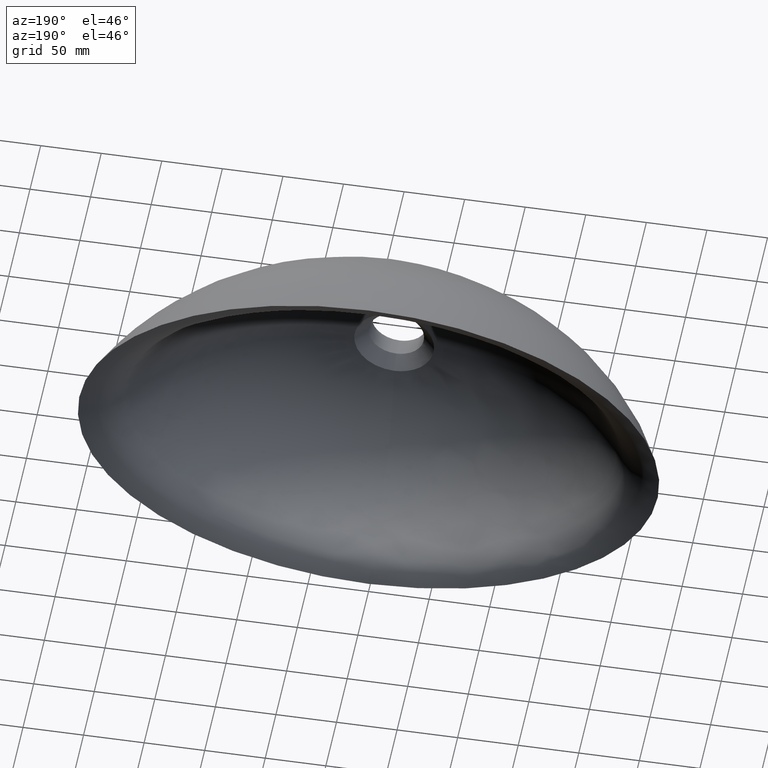
[diagram: clean part render]
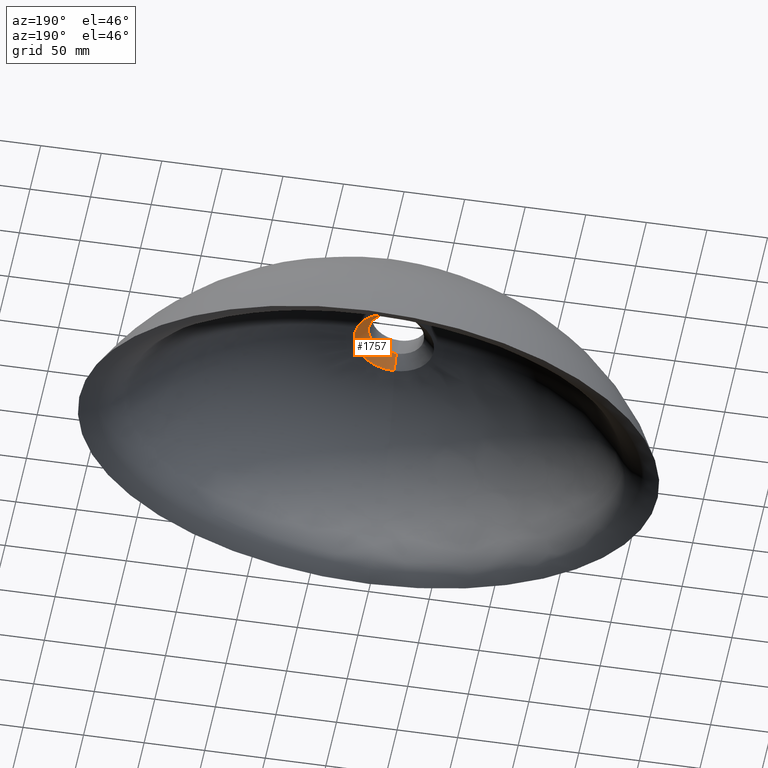
[diagram: same view with one face highlighted and labeled with its STEP entity id]
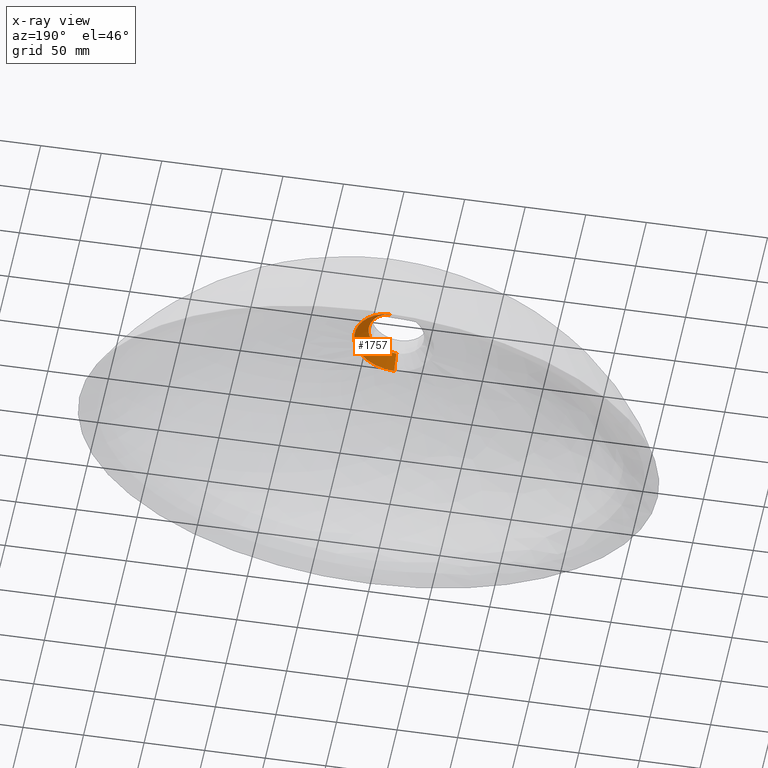
[diagram: x-ray of the same camera — body ghosted, the highlighted face saturated]
A machine part, auxiliary view. The second image highlights one B-rep face of the part: STEP entity #1757.
The next image is the same camera in x-ray: the body ghosted, the highlighted face saturated — about 1% of this face is hidden behind the body in this view.
In plain terms, the highlighted face is a freeform B-spline surface patch.
Its self-contained STEP definition (entity closure, byte-faithful):
#7 = CARTESIAN_POINT ( 'NONE',  ( 16.46208693124019700, -130.0000000000000000, 16.46208693124019700 ) ) ;
#10 = EDGE_CURVE ( 'NONE', #279, #1690, #1782, .T. ) ;
#39 = CARTESIAN_POINT ( 'NONE',  ( 22.97388258544183900, -126.6666666666666700, -13.46694669425560600 ) ) ;
#43 = CARTESIAN_POINT ( 'NONE',  ( 23.61951603177940500, -120.0000000000000600, 23.61951603177941200 ) ) ;
#52 = CARTESIAN_POINT ( 'NONE',  ( 0.8171307700640513300, -126.6666666666666700, 26.32341272285058100 ) ) ;
#53 = CARTESIAN_POINT ( 'NONE',  ( -3.547703429105101100, -123.3333333333333900, 29.52666568535948600 ) ) ;
#56 = CARTESIAN_POINT ( 'NONE',  ( 16.87630028773804700, -120.0000000000000300, 28.79005539188281300 ) ) ;
#74 = CARTESIAN_POINT ( 'NONE',  ( -0.3058699265881809100, -130.0000000000000000, 23.00000000000000700 ) ) ;
#75 = CARTESIAN_POINT ( 'NONE',  ( 3.946321791925883300, -120.0000000000000400, 32.84426857135494500 ) ) ;
#84 = CARTESIAN_POINT ( 'NONE',  ( 15.17162349099683500, -123.3333333333333100, -25.88196898866231200 ) ) ;
#85 = CARTESIAN_POINT ( 'NONE',  ( 7.434842606796172100, -126.6666666666666400, 25.49208752010253000 ) ) ;
#112 = CARTESIAN_POINT ( 'NONE',  ( 9.317081241428114800, -120.0000000000000000, 31.94578056316645800 ) ) ;
#114 = CARTESIAN_POINT ( 'NONE',  ( 23.28882790013081900, -130.0000000000000000, -5.421010862427522200E-015 ) ) ;
#169 = CARTESIAN_POINT ( 'NONE',  ( -23.61951603177939800, -120.0000000000000300, 23.61951603177940500 ) ) ;
#172 = CARTESIAN_POINT ( 'NONE',  ( 20.06579618222135200, -130.0000000000000000, -11.76226989751439300 ) ) ;
#247 = CARTESIAN_POINT ( 'NONE',  ( -23.61951603177939800, -120.0000000000000300, -23.61951603177940800 ) ) ;
#263 = CARTESIAN_POINT ( 'NONE',  ( -4.815006662785645400E-011, -130.0000000000000000, -23.00000000000000000 ) ) ;
#268 = CARTESIAN_POINT ( 'NONE',  ( 28.92157440256107700, -123.3333333333333100, 7.890557526477531200 ) ) ;
#276 = CARTESIAN_POINT ( 'NONE',  ( -5.512720266962036300E-011, -126.6666666666667000, -26.33333333333332900 ) ) ;
#279 = VERTEX_POINT ( 'NONE', #2513 ) ;
#305 = CARTESIAN_POINT ( 'NONE',  ( 1.023999319447356000, -120.0000000000000300, 32.98756784255958500 ) ) ;
#328 = VERTEX_POINT ( 'NONE', #3226 ) ;
#356 = CARTESIAN_POINT ( 'NONE',  ( 1.235990476633475100E-014, -123.3333333333333400, -30.03921279871946100 ) ) ;
#366 = ORIENTED_EDGE ( 'NONE', *, *, #1082, .F. ) ;
#367 = CARTESIAN_POINT ( 'NONE',  ( -11.76226989751439300, -129.9999999999999700, 20.06579618222134400 ) ) ;
#376 = CARTESIAN_POINT ( 'NONE',  ( -25.67195930114970500, -126.6666666666666700, -7.003978029120505200 ) ) ;
#380 = CARTESIAN_POINT ( 'NONE',  ( -22.97388258544183200, -126.6666666666666400, 13.46694669425561800 ) ) ;
#403 = CARTESIAN_POINT ( 'NONE',  ( -5.448115916739659800E-015, -120.0000000000000300, 33.00000000000000000 ) ) ;
#418 = CARTESIAN_POINT ( 'NONE',  ( 16.87630028773804700, -119.9999999999999900, -28.79005539188280900 ) ) ;
#511 = CARTESIAN_POINT ( 'NONE',  ( -5.448115916739659800E-015, -120.0000000000000300, 33.00000000000000000 ) ) ;
#533 = CARTESIAN_POINT ( 'NONE',  ( -8.777137023834550100, -120.0000000000000000, -32.17118950397242800 ) ) ;
#599 = CARTESIAN_POINT ( 'NONE',  ( -21.23370633159966700, -123.3333333333333100, 21.23370633159967000 ) ) ;
#657 = CARTESIAN_POINT ( 'NONE',  ( 0.9205650447557056600, -123.3333333333333600, 29.65549028270508100 ) ) ;
#682 = B_SPLINE_CURVE_WITH_KNOTS ( 'NONE', 3,
 ( #1109, #1140, #1101, #1098 ),
 .UNSPECIFIED., .F., .F.,
 ( 4, 4 ),
 ( 0.0000000000000000000, 1.000000000000000000 ),
 .UNSPECIFIED. ) ;
#699 = B_SPLINE_SURFACE_WITH_KNOTS ( 'NONE', 3, 3, ( 
 ( #1731, #2249, #2236, #2955, #1930, #1770, #169, #929, #1818, #1971, #2885, #794, #247, #2679, #533, #838, #1606, #418, #2121, #764, #1161, #3064, #1838, #1915, #43, #56, #112, #75, #305, #2197, #2194 ),
 ( #2083, #2184, #2162, #53, #1466, #3048, #599, #1784, #902, #920, #2522, #937, #1415, #1756, #3062, #356, #1052, #84, #2086, #905, #962, #2338, #268, #1803, #2957, #2605, #3176, #3070, #657, #2468, #2576 ),
 ( #1986, #3122, #2973, #790, #1113, #1067, #3218, #380, #867, #2706, #376, #1733, #2374, #734, #1117, #2664, #2359, #1555, #2716, #39, #3034, #2203, #2493, #2325, #2533, #2096, #85, #1077, #52, #2784, #2834 ),
 ( #2133, #74, #1987, #820, #1866, #367, #1907, #1561, #1892, #864, #1774, #1769, #1594, #1991, #776, #2570, #2894, #3130, #2291, #172, #1093, #114, #2324, #915, #7, #1169, #1469, #2595, #1667, #2718, #1335 ) ),
 .UNSPECIFIED., .F., .T., .F.,
 ( 4, 4 ),
 ( 4, 1, 1, 1, 1, 1, 1, 1, 1, 1, 1, 1, 1, 1, 1, 1, 1, 1, 1, 1, 1, 1, 1, 1, 1, 1, 1, 1, 4 ),
 ( 0.0000000000000000000, 1.000000000000000000 ),
 ( 0.0000000000000000000, 0.006250000000000088800, 0.008333333333333303700, 0.04166666666666663000, 0.08333333333333337000, 0.1249999999999998900, 0.1666666666666666300, 0.2083333333333333700, 0.2499999999999998300, 0.2916666666666666300, 0.3333333333333333700, 0.3750000000000001100, 0.4166666666666666300, 0.4583333333333333700, 0.5000000000009839900, 0.5416666666666667400, 0.5833333333333332600, 0.6250000000000000000, 0.6666666666666667400, 0.7083333333333332600, 0.7499999999999998900, 0.7916666666666666300, 0.8333333333333333700, 0.8750000000000000000, 0.9166666666666666300, 0.9583333333333333700, 0.9916666666666667000, 0.9937500000000000200, 1.000000000000000000 ),
 .UNSPECIFIED. ) ;
#734 = CARTESIAN_POINT ( 'NONE',  ( -13.46694669425560200, -126.6666666666666700, -22.97388258544182400 ) ) ;
#764 = CARTESIAN_POINT ( 'NONE',  ( 28.79005539188281700, -120.0000000000000300, -16.87630028773804700 ) ) ;
#776 = CARTESIAN_POINT ( 'NONE',  ( -6.117398531763475600, -130.0000000000000000, -22.42234419973835500 ) ) ;
#790 = CARTESIAN_POINT ( 'NONE',  ( -3.149085066284305100, -126.6666666666667000, 26.20906279936403700 ) ) ;
#794 = CARTESIAN_POINT ( 'NONE',  ( -28.79005539188280600, -120.0000000000000300, -16.87630028773804700 ) ) ;
#820 = CARTESIAN_POINT ( 'NONE',  ( -2.750466703463506400, -130.0000000000000300, 22.89145991336859300 ) ) ;
#838 = CARTESIAN_POINT ( 'NONE',  ( 1.387778780781445700E-014, -120.0000000000000000, -33.41440524801380000 ) ) ;
#864 = CARTESIAN_POINT ( 'NONE',  ( -23.28882790013081900, -130.0000000000000000, -3.686287386450715100E-015 ) ) ;
#867 = CARTESIAN_POINT ( 'NONE',  ( -25.67195930114970200, -126.6666666666666400, 7.003978029120502500 ) ) ;
#899 = CARTESIAN_POINT ( 'NONE',  ( 16.46208693124019700, -130.0000000000000000, 16.46208693124019700 ) ) ;
#902 = CARTESIAN_POINT ( 'NONE',  ( -28.92157440256107700, -123.3333333333333000, 7.890557526477527600 ) ) ;
#905 = CARTESIAN_POINT ( 'NONE',  ( 25.88196898866233300, -123.3333333333333400, -15.17162349099682400 ) ) ;
#915 = CARTESIAN_POINT ( 'NONE',  ( 20.06579618222135900, -130.0000000000000300, 11.76226989751439500 ) ) ;
#920 = CARTESIAN_POINT ( 'NONE',  ( -30.03921279871947200, -123.3333333333333100, -2.096124200138609000E-015 ) ) ;
#929 = CARTESIAN_POINT ( 'NONE',  ( -28.79005539188280600, -120.0000000000000400, 16.87630028773805100 ) ) ;
#937 = CARTESIAN_POINT ( 'NONE',  ( -25.88196898866232600, -123.3333333333333100, -15.17162349099682900 ) ) ;
#962 = CARTESIAN_POINT ( 'NONE',  ( 28.92157440256108100, -123.3333333333333400, -7.890557526477527600 ) ) ;
#966 = ORIENTED_EDGE ( 'NONE', *, *, #10, .F. ) ;
#1020 = ORIENTED_EDGE ( 'NONE', *, *, #2217, .T. ) ;
#1052 = CARTESIAN_POINT ( 'NONE',  ( 7.890557526477536500, -123.3333333333333400, -28.92157440256106300 ) ) ;
#1067 = CARTESIAN_POINT ( 'NONE',  ( -13.46694669425561000, -126.6666666666666400, 22.97388258544183500 ) ) ;
#1077 = CARTESIAN_POINT ( 'NONE',  ( 3.149085066284290400, -126.6666666666666700, 26.20906279936403400 ) ) ;
#1082 = EDGE_CURVE ( 'NONE', #1690, #2731, #682, .T. ) ;
#1093 = CARTESIAN_POINT ( 'NONE',  ( 22.42234419973835500, -130.0000000000000000, -6.117398531763478300 ) ) ;
#1098 = CARTESIAN_POINT ( 'NONE',  ( -2.656295322589485900E-015, -130.0000000000000000, 23.00000000000000700 ) ) ;
#1101 = CARTESIAN_POINT ( 'NONE',  ( -4.553649124439118600E-015, -126.6666666666666400, 26.33333333333333200 ) ) ;
#1109 = CARTESIAN_POINT ( 'NONE',  ( -5.448115916739659800E-015, -120.0000000000000300, 33.00000000000000000 ) ) ;
#1113 = CARTESIAN_POINT ( 'NONE',  ( -7.434842606796181000, -126.6666666666666400, 25.49208752010252300 ) ) ;
#1117 = CARTESIAN_POINT ( 'NONE',  ( -7.003978029120498100, -126.6666666666666700, -25.67195930114970200 ) ) ;
#1140 = CARTESIAN_POINT ( 'NONE',  ( -2.900240811398724400E-015, -123.3333333333333600, 29.66666666666666800 ) ) ;
#1161 = CARTESIAN_POINT ( 'NONE',  ( 32.17118950397243500, -120.0000000000000300, -8.777137023834559000 ) ) ;
#1169 = CARTESIAN_POINT ( 'NONE',  ( 11.76226989751439500, -130.0000000000000000, 20.06579618222135900 ) ) ;
#1335 = CARTESIAN_POINT ( 'NONE',  ( -2.656295322589485900E-015, -130.0000000000000000, 23.00000000000000700 ) ) ;
#1415 = CARTESIAN_POINT ( 'NONE',  ( -21.23370633159966700, -123.3333333333333400, -21.23370633159966700 ) ) ;
#1453 = CARTESIAN_POINT ( 'NONE',  ( 32.17118950397242800, -120.0000000000000300, 8.777137023834557200 ) ) ;
#1466 = CARTESIAN_POINT ( 'NONE',  ( -8.375961924112152300, -123.3333333333333100, 28.71893404163448300 ) ) ;
#1469 = CARTESIAN_POINT ( 'NONE',  ( 6.493723289480201700, -130.0000000000000000, 22.26524099857056900 ) ) ;
#1501 = CARTESIAN_POINT ( 'NONE',  ( 32.17118950397243500, -120.0000000000000300, -8.777137023834559000 ) ) ;
#1518 = CARTESIAN_POINT ( 'NONE',  ( -6.908711260444515000E-011, -120.0000000000000000, -33.00000000000001400 ) ) ;
#1551 = CARTESIAN_POINT ( 'NONE',  ( -4.815006662785645400E-011, -130.0000000000000000, -23.00000000000000000 ) ) ;
#1555 = CARTESIAN_POINT ( 'NONE',  ( 13.46694669425561500, -126.6666666666666700, -22.97388258544182800 ) ) ;
#1556 = CARTESIAN_POINT ( 'NONE',  ( 20.06579618222135900, -130.0000000000000300, 11.76226989751439500 ) ) ;
#1561 = CARTESIAN_POINT ( 'NONE',  ( -20.06579618222134400, -129.9999999999999700, 11.76226989751440000 ) ) ;
#1594 = CARTESIAN_POINT ( 'NONE',  ( -16.46208693124018700, -130.0000000000000000, -16.46208693124019000 ) ) ;
#1606 = CARTESIAN_POINT ( 'NONE',  ( 8.777137023834562500, -120.0000000000000000, -32.17118950397243500 ) ) ;
#1652 = CARTESIAN_POINT ( 'NONE',  ( 23.61951603177941200, -120.0000000000000000, -23.61951603177940500 ) ) ;
#1667 = CARTESIAN_POINT ( 'NONE',  ( 0.7136964953724005400, -130.0000000000000000, 22.99133516299608400 ) ) ;
#1690 = VERTEX_POINT ( 'NONE', #511 ) ;
#1712 = CARTESIAN_POINT ( 'NONE',  ( 16.87630028773804700, -119.9999999999999900, -28.79005539188280900 ) ) ;
#1731 = CARTESIAN_POINT ( 'NONE',  ( -5.448115916739659800E-015, -120.0000000000000300, 33.00000000000000000 ) ) ;
#1733 = CARTESIAN_POINT ( 'NONE',  ( -22.97388258544182800, -126.6666666666667000, -13.46694669425561300 ) ) ;
#1739 = CARTESIAN_POINT ( 'NONE',  ( 11.76226989751439500, -130.0000000000000000, 20.06579618222135900 ) ) ;
#1744 = ORIENTED_EDGE ( 'NONE', *, *, #2862, .T. ) ;
#1756 = CARTESIAN_POINT ( 'NONE',  ( -15.17162349099682600, -123.3333333333333100, -25.88196898866231500 ) ) ;
#1757 = ADVANCED_FACE ( 'NONE', ( #1820 ), #699, .T. ) ;
#1769 = CARTESIAN_POINT ( 'NONE',  ( -20.06579618222134400, -130.0000000000000000, -11.76226989751440200 ) ) ;
#1770 = CARTESIAN_POINT ( 'NONE',  ( -16.87630028773804400, -120.0000000000000300, 28.79005539188280600 ) ) ;
#1774 = CARTESIAN_POINT ( 'NONE',  ( -22.42234419973835500, -130.0000000000000000, -6.117398531763482700 ) ) ;
#1782 = B_SPLINE_CURVE_WITH_KNOTS ( 'NONE', 3,
 ( #1518, #1808, #2129, #1712, #1652, #1909, #1501, #1873, #1453, #2178, #3206, #1856, #3091, #3075, #2313, #2583, #403 ),
 .UNSPECIFIED., .F., .F.,
 ( 4, 1, 1, 1, 1, 1, 1, 1, 1, 1, 1, 1, 1, 1, 4 ),
 ( 0.5000000000000004400, 0.5416666666657651300, 0.5833333333325136900, 0.6249999999992623700, 0.6666666666660110400, 0.7083333333327595000, 0.7499999999995081700, 0.7916666666662568500, 0.8333333333330055200, 0.8749999999997540900, 0.9166666666665026500, 0.9583333333332514400, 0.9916666666666502600, 0.9937499999999877000, 1.000000000000000000 ),
 .UNSPECIFIED. ) ;
#1784 = CARTESIAN_POINT ( 'NONE',  ( -25.88196898866232600, -123.3333333333333100, 15.17162349099683800 ) ) ;
#1789 = CARTESIAN_POINT ( 'NONE',  ( -2.656295322589485900E-015, -130.0000000000000000, 23.00000000000000700 ) ) ;
#1803 = CARTESIAN_POINT ( 'NONE',  ( 25.88196898866233300, -123.3333333333333700, 15.17162349099683500 ) ) ;
#1808 = CARTESIAN_POINT ( 'NONE',  ( 2.925712341209166100, -120.0000000000000100, -33.00000000000979100 ) ) ;
#1818 = CARTESIAN_POINT ( 'NONE',  ( -32.17118950397242100, -120.0000000000000300, 8.777137023834550100 ) ) ;
#1820 = FACE_OUTER_BOUND ( 'NONE', #1855, .T. ) ;
#1838 = CARTESIAN_POINT ( 'NONE',  ( 32.17118950397242800, -120.0000000000000300, 8.777137023834557200 ) ) ;
#1855 = EDGE_LOOP ( 'NONE', ( #966, #1020, #1744, #366 ) ) ;
#1856 = CARTESIAN_POINT ( 'NONE',  ( 16.87630028773804700, -120.0000000000000300, 28.79005539188281300 ) ) ;
#1866 = CARTESIAN_POINT ( 'NONE',  ( -6.493723289480208800, -130.0000000000000000, 22.26524099857055800 ) ) ;
#1873 = CARTESIAN_POINT ( 'NONE',  ( 33.41440524801380000, -120.0000000000000100, -1.040834085586084300E-014 ) ) ;
#1892 = CARTESIAN_POINT ( 'NONE',  ( -22.42234419973835500, -130.0000000000000000, 6.117398531763476500 ) ) ;
#1907 = CARTESIAN_POINT ( 'NONE',  ( -16.46208693124018700, -129.9999999999999700, 16.46208693124019000 ) ) ;
#1909 = CARTESIAN_POINT ( 'NONE',  ( 28.79005539188281700, -120.0000000000000300, -16.87630028773804700 ) ) ;
#1915 = CARTESIAN_POINT ( 'NONE',  ( 28.79005539188281300, -120.0000000000000700, 16.87630028773805100 ) ) ;
#1930 = CARTESIAN_POINT ( 'NONE',  ( -9.317081241428123700, -120.0000000000000000, 31.94578056316644400 ) ) ;
#1971 = CARTESIAN_POINT ( 'NONE',  ( -33.41440524801378600, -120.0000000000000300, -6.071532165918824800E-015 ) ) ;
#1986 = CARTESIAN_POINT ( 'NONE',  ( -4.553649124439118600E-015, -126.6666666666666400, 26.33333333333333200 ) ) ;
#1987 = CARTESIAN_POINT ( 'NONE',  ( -0.7136964953724115300, -130.0000000000000000, 22.99133516299608000 ) ) ;
#1991 = CARTESIAN_POINT ( 'NONE',  ( -11.76226989751439000, -130.0000000000000000, -20.06579618222134400 ) ) ;
#2083 = CARTESIAN_POINT ( 'NONE',  ( -2.900240811398724400E-015, -123.3333333333333600, 29.66666666666666800 ) ) ;
#2086 = CARTESIAN_POINT ( 'NONE',  ( 21.23370633159967400, -123.3333333333333100, -21.23370633159965900 ) ) ;
#2096 = CARTESIAN_POINT ( 'NONE',  ( 13.46694669425560800, -126.6666666666666300, 22.97388258544184600 ) ) ;
#2121 = CARTESIAN_POINT ( 'NONE',  ( 23.61951603177941200, -120.0000000000000000, -23.61951603177940500 ) ) ;
#2129 = CARTESIAN_POINT ( 'NONE',  ( 8.777137023770833900, -120.0000000000000000, -32.17118950399903800 ) ) ;
#2133 = CARTESIAN_POINT ( 'NONE',  ( -2.656295322589485900E-015, -130.0000000000000000, 23.00000000000000700 ) ) ;
#2162 = CARTESIAN_POINT ( 'NONE',  ( -0.9205650447557182100, -123.3333333333333600, 29.65549028270508100 ) ) ;
#2178 = CARTESIAN_POINT ( 'NONE',  ( 28.79005539188281300, -120.0000000000000700, 16.87630028773805100 ) ) ;
#2184 = CARTESIAN_POINT ( 'NONE',  ( -0.3945278763238850800, -123.3333333333333600, 29.66666666666666800 ) ) ;
#2194 = CARTESIAN_POINT ( 'NONE',  ( -5.448115916739659800E-015, -120.0000000000000300, 33.00000000000000000 ) ) ;
#2197 = CARTESIAN_POINT ( 'NONE',  ( 0.4388568511917208000, -120.0000000000000300, 33.00000000000000000 ) ) ;
#2203 = CARTESIAN_POINT ( 'NONE',  ( 26.66402034942514000, -126.6666666666666700, -5.926971876254123800E-015 ) ) ;
#2217 = EDGE_CURVE ( 'NONE', #279, #328, #3076, .T. ) ;
#2236 = CARTESIAN_POINT ( 'NONE',  ( -1.023999319447374200, -120.0000000000000600, 32.98756784255958500 ) ) ;
#2249 = CARTESIAN_POINT ( 'NONE',  ( -0.4388568511917394500, -120.0000000000000400, 33.00000000000000000 ) ) ;
#2259 = CARTESIAN_POINT ( 'NONE',  ( -6.210889236050875600E-011, -123.3333333333333600, -29.66666666666666100 ) ) ;
#2291 = CARTESIAN_POINT ( 'NONE',  ( 16.46208693124019400, -130.0000000000000000, -16.46208693124019000 ) ) ;
#2313 = CARTESIAN_POINT ( 'NONE',  ( 1.023999319447356000, -120.0000000000000300, 32.98756784255958500 ) ) ;
#2324 = CARTESIAN_POINT ( 'NONE',  ( 22.42234419973836200, -130.0000000000000000, 6.117398531763477400 ) ) ;
#2325 = CARTESIAN_POINT ( 'NONE',  ( 22.97388258544184200, -126.6666666666666700, 13.46694669425561300 ) ) ;
#2338 = CARTESIAN_POINT ( 'NONE',  ( 30.03921279871947900, -123.3333333333333300, -5.565571152092272900E-015 ) ) ;
#2359 = CARTESIAN_POINT ( 'NONE',  ( 7.003978029120509600, -126.6666666666667000, -25.67195930114970500 ) ) ;
#2374 = CARTESIAN_POINT ( 'NONE',  ( -18.84789663141991800, -126.6666666666667000, -18.84789663141992500 ) ) ;
#2468 = CARTESIAN_POINT ( 'NONE',  ( 0.3945278763238721500, -123.3333333333333600, 29.66666666666666800 ) ) ;
#2493 = CARTESIAN_POINT ( 'NONE',  ( 25.67195930114971200, -126.6666666666666300, 7.003978029120504300 ) ) ;
#2513 = CARTESIAN_POINT ( 'NONE',  ( -6.908711260444515000E-011, -120.0000000000000000, -33.00000000000001400 ) ) ;
#2522 = CARTESIAN_POINT ( 'NONE',  ( -28.92157440256108100, -123.3333333333333100, -7.890557526477527600 ) ) ;
#2533 = CARTESIAN_POINT ( 'NONE',  ( 18.84789663141992800, -126.6666666666666300, 18.84789663141993200 ) ) ;
#2570 = CARTESIAN_POINT ( 'NONE',  ( 1.149254302834634700E-014, -130.0000000000000000, -23.28882790013082300 ) ) ;
#2575 = CARTESIAN_POINT ( 'NONE',  ( 2.750466703463495800, -130.0000000000000000, 22.89145991336859600 ) ) ;
#2576 = CARTESIAN_POINT ( 'NONE',  ( -2.900240811398724400E-015, -123.3333333333333600, 29.66666666666666800 ) ) ;
#2579 = CARTESIAN_POINT ( 'NONE',  ( 0.7136964953724005400, -130.0000000000000000, 22.99133516299608400 ) ) ;
#2583 = CARTESIAN_POINT ( 'NONE',  ( 0.4388568511917208000, -120.0000000000000300, 33.00000000000000000 ) ) ;
#2595 = CARTESIAN_POINT ( 'NONE',  ( 2.750466703463495800, -130.0000000000000000, 22.89145991336859600 ) ) ;
#2596 = CARTESIAN_POINT ( 'NONE',  ( 6.493723289480201700, -130.0000000000000000, 22.26524099857056900 ) ) ;
#2597 = CARTESIAN_POINT ( 'NONE',  ( -2.656295322589485900E-015, -130.0000000000000000, 23.00000000000000700 ) ) ;
#2602 = CARTESIAN_POINT ( 'NONE',  ( 0.3058699265881701900, -130.0000000000000000, 23.00000000000000700 ) ) ;
#2605 = CARTESIAN_POINT ( 'NONE',  ( 15.17162349099683300, -123.3333333333333300, 25.88196898866232900 ) ) ;
#2623 = CARTESIAN_POINT ( 'NONE',  ( 23.28882790013081900, -130.0000000000000000, -5.421010862427522200E-015 ) ) ;
#2642 = CARTESIAN_POINT ( 'NONE',  ( 20.06579618222135200, -130.0000000000000000, -11.76226989751439300 ) ) ;
#2645 = CARTESIAN_POINT ( 'NONE',  ( 11.76226989751439900, -130.0000000000000000, -20.06579618222134800 ) ) ;
#2649 = CARTESIAN_POINT ( 'NONE',  ( 6.117398531719067600, -130.0000000000000000, -22.42234419975690000 ) ) ;
#2664 = CARTESIAN_POINT ( 'NONE',  ( 1.431146867680865900E-014, -126.6666666666667000, -26.66402034942514000 ) ) ;
#2667 = CARTESIAN_POINT ( 'NONE',  ( 22.42234419973836200, -130.0000000000000000, 6.117398531763477400 ) ) ;
#2668 = CARTESIAN_POINT ( 'NONE',  ( 16.46208693124019400, -130.0000000000000000, -16.46208693124019000 ) ) ;
#2679 = CARTESIAN_POINT ( 'NONE',  ( -16.87630028773803700, -120.0000000000000000, -28.79005539188281300 ) ) ;
#2690 = CARTESIAN_POINT ( 'NONE',  ( 22.42234419973835500, -130.0000000000000000, -6.117398531763478300 ) ) ;
#2706 = CARTESIAN_POINT ( 'NONE',  ( -26.66402034942513300, -126.6666666666666400, -3.324886662288863800E-015 ) ) ;
#2716 = CARTESIAN_POINT ( 'NONE',  ( 18.84789663141993200, -126.6666666666666700, -18.84789663141992500 ) ) ;
#2718 = CARTESIAN_POINT ( 'NONE',  ( 0.3058699265881701900, -130.0000000000000000, 23.00000000000000700 ) ) ;
#2731 = VERTEX_POINT ( 'NONE', #2597 ) ;
#2732 = CARTESIAN_POINT ( 'NONE',  ( -6.908711260444515000E-011, -120.0000000000000000, -33.00000000000001400 ) ) ;
#2784 = CARTESIAN_POINT ( 'NONE',  ( 0.3501989014560194000, -126.6666666666666400, 26.33333333333333200 ) ) ;
#2834 = CARTESIAN_POINT ( 'NONE',  ( -4.553649124439118600E-015, -126.6666666666666400, 26.33333333333333200 ) ) ;
#2862 = EDGE_CURVE ( 'NONE', #328, #2731, #2927, .T. ) ;
#2885 = CARTESIAN_POINT ( 'NONE',  ( -32.17118950397242800, -120.0000000000000300, -8.777137023834559000 ) ) ;
#2894 = CARTESIAN_POINT ( 'NONE',  ( 6.117398531763483600, -130.0000000000000000, -22.42234419973835500 ) ) ;
#2927 = B_SPLINE_CURVE_WITH_KNOTS ( 'NONE', 3,
 ( #1551, #2934, #2649, #2645, #2668, #2642, #2690, #2623, #2667, #1556, #899, #1739, #2596, #2575, #2579, #2602, #1789 ),
 .UNSPECIFIED., .F., .F.,
 ( 4, 1, 1, 1, 1, 1, 1, 1, 1, 1, 1, 1, 1, 1, 4 ),
 ( 0.5000000000000004400, 0.5416666666657651300, 0.5833333333325136900, 0.6249999999992623700, 0.6666666666660110400, 0.7083333333327595000, 0.7499999999995081700, 0.7916666666662568500, 0.8333333333330055200, 0.8749999999997540900, 0.9166666666665026500, 0.9583333333332514400, 0.9916666666666502600, 0.9937499999999877000, 1.000000000000000000 ),
 .UNSPECIFIED. ) ;
#2934 = CARTESIAN_POINT ( 'NONE',  ( 2.039132843873056700, -130.0000000000000000, -23.00000000000681800 ) ) ;
#2955 = CARTESIAN_POINT ( 'NONE',  ( -3.946321791925900600, -120.0000000000001100, 32.84426857135493100 ) ) ;
#2957 = CARTESIAN_POINT ( 'NONE',  ( 21.23370633159967000, -123.3333333333333600, 21.23370633159967700 ) ) ;
#2973 = CARTESIAN_POINT ( 'NONE',  ( -0.8171307700640665400, -126.6666666666666700, 26.32341272285058100 ) ) ;
#3034 = CARTESIAN_POINT ( 'NONE',  ( 25.67195930114970900, -126.6666666666666700, -7.003978029120503400 ) ) ;
#3048 = CARTESIAN_POINT ( 'NONE',  ( -15.17162349099682900, -123.3333333333333300, 25.88196898866232200 ) ) ;
#3062 = CARTESIAN_POINT ( 'NONE',  ( -7.890557526477527600, -123.3333333333333300, -28.92157440256106300 ) ) ;
#3064 = CARTESIAN_POINT ( 'NONE',  ( 33.41440524801380000, -120.0000000000000100, -1.040834085586084300E-014 ) ) ;
#3070 = CARTESIAN_POINT ( 'NONE',  ( 3.547703429105089100, -123.3333333333333700, 29.52666568535949300 ) ) ;
#3075 = CARTESIAN_POINT ( 'NONE',  ( 3.946321791925883300, -120.0000000000000400, 32.84426857135494500 ) ) ;
#3076 = B_SPLINE_CURVE_WITH_KNOTS ( 'NONE', 3,
 ( #2732, #2259, #276, #263 ),
 .UNSPECIFIED., .F., .F.,
 ( 4, 4 ),
 ( 0.0000000000000000000, 1.000000000000000000 ),
 .UNSPECIFIED. ) ;
#3091 = CARTESIAN_POINT ( 'NONE',  ( 9.317081241428114800, -120.0000000000000000, 31.94578056316645800 ) ) ;
#3122 = CARTESIAN_POINT ( 'NONE',  ( -0.3501989014560346600, -126.6666666666666400, 26.33333333333333200 ) ) ;
#3130 = CARTESIAN_POINT ( 'NONE',  ( 11.76226989751439900, -130.0000000000000000, -20.06579618222134800 ) ) ;
#3176 = CARTESIAN_POINT ( 'NONE',  ( 8.375961924112147000, -123.3333333333333300, 28.71893404163449800 ) ) ;
#3206 = CARTESIAN_POINT ( 'NONE',  ( 23.61951603177940500, -120.0000000000000600, 23.61951603177941200 ) ) ;
#3218 = CARTESIAN_POINT ( 'NONE',  ( -18.84789663141992100, -126.6666666666666400, 18.84789663141992800 ) ) ;
#3226 = CARTESIAN_POINT ( 'NONE',  ( -4.815006662785645400E-011, -130.0000000000000000, -23.00000000000000000 ) ) ;